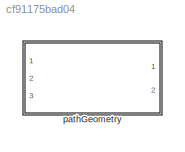
MODEL slx_cf91175bad04
KIND library
CONFIG AbsTol = auto
CONFIG EnableMultiTasking = off
CONFIG FixedStep = auto
CONFIG MaxStep = auto
CONFIG MinStep = auto
CONFIG RelTol = 1e-3
CONFIG SampleTimeConstraint = Unconstrained
CONFIG SolverName = VariableStepAuto
CONFIG StartTime = 0.0
CONFIG StopTime = 10.0
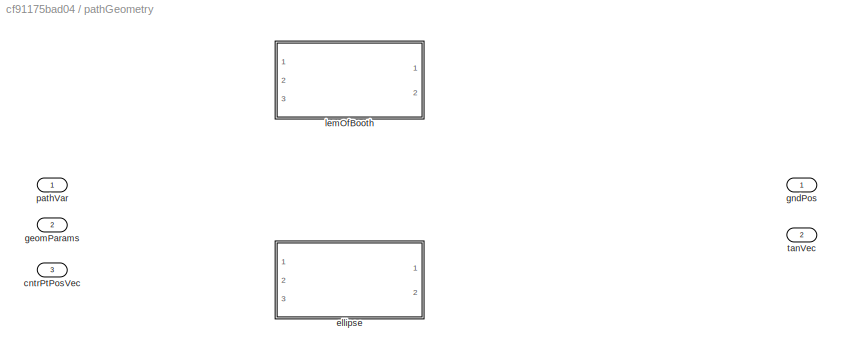
BLOCK [SubSystem] pathGeometry
  Ports = [3, 2]
  RequestExecContextInheritance = off
BLOCK [Inport] pathGeometry/cntrPtPosVec
  Port = 3
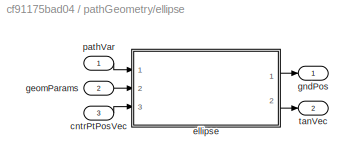
BLOCK [SubSystem] pathGeometry/ellipse
  Ports = [3, 2]
  RequestExecContextInheritance = off
BLOCK [Inport] pathGeometry/ellipse/cntrPtPosVec
  Port = 3
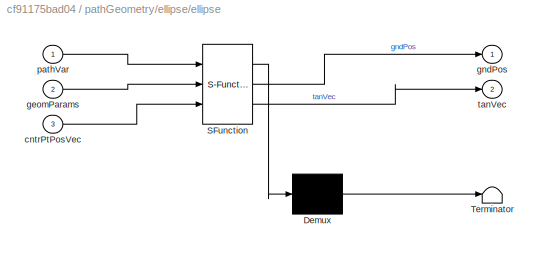
BLOCK [SubSystem] pathGeometry/ellipse/ellipse
  ErrorFcn = Stateflow.Translate.translate
  PermitHierarchicalResolution = ExplicitOnly
  Ports = [3, 2]
  RequestExecContextInheritance = off
  SFBlockType = MATLAB Function
  TreatAsAtomicUnit = on
  VariantControl = VSS_pathGeometry_ellipse
BLOCK [Demux] pathGeometry/ellipse/ellipse/ Demux 
  Outputs = 1
  Ports = [1, 1]
BLOCK [S-Function] pathGeometry/ellipse/ellipse/ SFunction 
  EnableBusSupport = off
  FunctionName = sf_sfun
  PortCounts = [3 3]
  Ports = [3, 3]
  SFcnIsStateOwnerBlock = off
  SFunctionDeploymentMode = off
  Tag = Stateflow S-Function 6
BLOCK [Terminator] pathGeometry/ellipse/ellipse/ Terminator 
BLOCK [Inport] pathGeometry/ellipse/ellipse/cntrPtPosVec
  Port = 3
BLOCK [Inport] pathGeometry/ellipse/ellipse/geomParams
  Port = 2
BLOCK [Outport] pathGeometry/ellipse/ellipse/gndPos
  VectorParamsAs1DForOutWhenUnconnected = off
BLOCK [Inport] pathGeometry/ellipse/ellipse/pathVar
BLOCK [Outport] pathGeometry/ellipse/ellipse/tanVec
  Port = 2
  VectorParamsAs1DForOutWhenUnconnected = off
BLOCK [Inport] pathGeometry/ellipse/geomParams
  Port = 2
BLOCK [Outport] pathGeometry/ellipse/gndPos
BLOCK [Inport] pathGeometry/ellipse/pathVar
BLOCK [Outport] pathGeometry/ellipse/tanVec
  Port = 2
BLOCK [Inport] pathGeometry/geomParams
  Port = 2
BLOCK [Outport] pathGeometry/gndPos
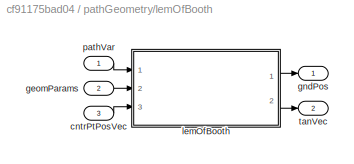
BLOCK [SubSystem] pathGeometry/lemOfBooth
  Ports = [3, 2]
  RequestExecContextInheritance = off
BLOCK [Inport] pathGeometry/lemOfBooth/cntrPtPosVec
  Port = 3
BLOCK [Inport] pathGeometry/lemOfBooth/geomParams
  Port = 2
BLOCK [Outport] pathGeometry/lemOfBooth/gndPos
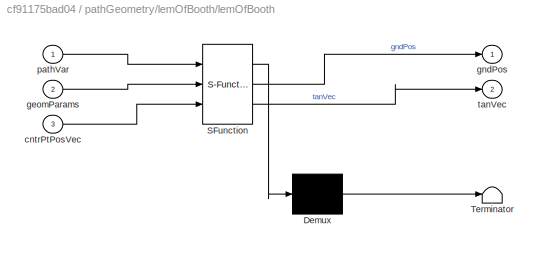
BLOCK [SubSystem] pathGeometry/lemOfBooth/lemOfBooth
  ErrorFcn = Stateflow.Translate.translate
  PermitHierarchicalResolution = ExplicitOnly
  Ports = [3, 2]
  RequestExecContextInheritance = off
  SFBlockType = MATLAB Function
  TreatAsAtomicUnit = on
  VariantControl = VSS_pathGeometry_lemOfBooth
BLOCK [Demux] pathGeometry/lemOfBooth/lemOfBooth/ Demux 
  Outputs = 1
  Ports = [1, 1]
BLOCK [S-Function] pathGeometry/lemOfBooth/lemOfBooth/ SFunction 
  EnableBusSupport = off
  FunctionName = sf_sfun
  PortCounts = [3 3]
  Ports = [3, 3]
  SFcnIsStateOwnerBlock = off
  SFunctionDeploymentMode = off
  Tag = Stateflow S-Function 7
BLOCK [Terminator] pathGeometry/lemOfBooth/lemOfBooth/ Terminator 
BLOCK [Inport] pathGeometry/lemOfBooth/lemOfBooth/cntrPtPosVec
  Port = 3
BLOCK [Inport] pathGeometry/lemOfBooth/lemOfBooth/geomParams
  Port = 2
BLOCK [Outport] pathGeometry/lemOfBooth/lemOfBooth/gndPos
  VectorParamsAs1DForOutWhenUnconnected = off
BLOCK [Inport] pathGeometry/lemOfBooth/lemOfBooth/pathVar
BLOCK [Outport] pathGeometry/lemOfBooth/lemOfBooth/tanVec
  Port = 2
  VectorParamsAs1DForOutWhenUnconnected = off
BLOCK [Inport] pathGeometry/lemOfBooth/pathVar
BLOCK [Outport] pathGeometry/lemOfBooth/tanVec
  Port = 2
BLOCK [Inport] pathGeometry/pathVar
BLOCK [Outport] pathGeometry/tanVec
  Port = 2
LINE pathGeometry/ellipse/cntrPtPosVec:1 -> pathGeometry/ellipse/ellipse:3
LINE pathGeometry/ellipse/ellipse:1 -> pathGeometry/ellipse/gndPos:1
LINE pathGeometry/ellipse/ellipse:2 -> pathGeometry/ellipse/tanVec:1
LINE pathGeometry/ellipse/geomParams:1 -> pathGeometry/ellipse/ellipse:2
LINE pathGeometry/ellipse/pathVar:1 -> pathGeometry/ellipse/ellipse:1
LINE pathGeometry/lemOfBooth/cntrPtPosVec:1 -> pathGeometry/lemOfBooth/lemOfBooth:3
LINE pathGeometry/lemOfBooth/geomParams:1 -> pathGeometry/lemOfBooth/lemOfBooth:2
LINE pathGeometry/lemOfBooth/lemOfBooth:1 -> pathGeometry/lemOfBooth/gndPos:1
LINE pathGeometry/lemOfBooth/lemOfBooth:2 -> pathGeometry/lemOfBooth/tanVec:1
LINE pathGeometry/lemOfBooth/pathVar:1 -> pathGeometry/lemOfBooth/lemOfBooth:1
CHART pathGeometry/ellipse/ellipse states=1 transitions=1
  STATE_LABEL 'eML_blk_kernel()'
  STATE_LABEL 'SCRIPT:\nfunction [gndPos,tanVec] = fcn(pathVar,geomParams,cntrPtPosVec)\n[gndPos,tanVec] = ellipse(pathVar,geomParams,cntrPtPosVec);\n\n'
CHART pathGeometry/lemOfBooth/lemOfBooth states=1 transitions=1
  STATE_LABEL 'eML_blk_kernel()'
  STATE_LABEL 'SCRIPT:\nfunction [gndPos,tanVec] = fcn(pathVar,geomParams,cntrPtPosVec)\n[gndPos,tanVec] = lemOfBooth(pathVar,geomParams,cntrPtPosVec);\n\n'
CHART  states=0 transitions=0
CHART  states=0 transitions=0
